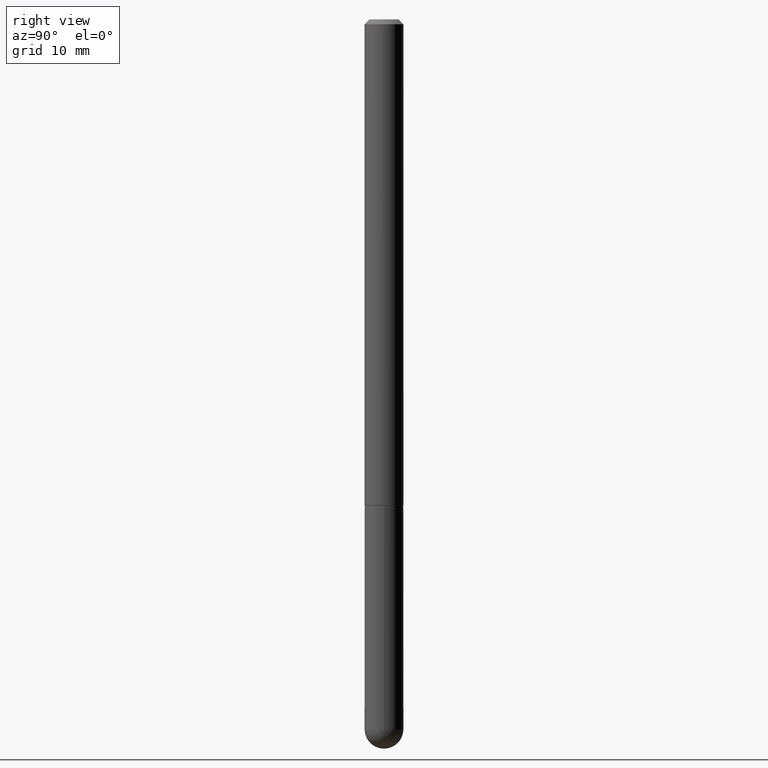
[diagram: clean part render]
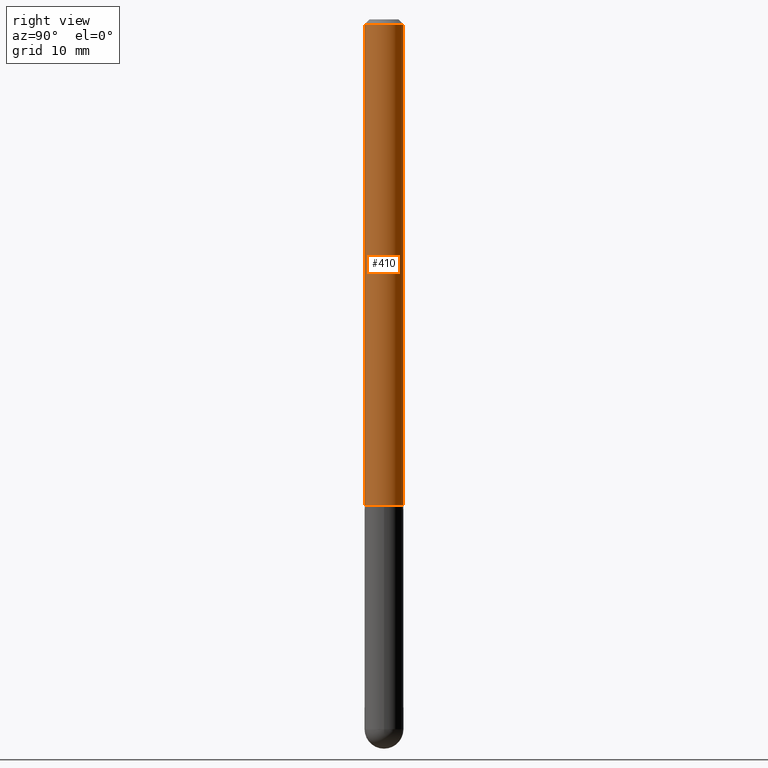
[diagram: same view with one face highlighted and labeled with its STEP entity id]
A machine part, right view. The second image highlights one B-rep face of the part: STEP entity #410.
In plain terms, the highlighted cylindrical surface (edge-blend (fillet) strip) has radius 2.0003 mm, axis along (-0, 0, 1).
Its self-contained STEP definition (entity closure, byte-faithful):
#7 = DIRECTION ( 'NONE',  ( -2.452606242276134078E-29, 3.481260124123204048E-15, 1.000000000000000000 ) ) ;
#37 = CIRCLE ( 'NONE', #340, 0.07875000000000019484 ) ;
#44 = CARTESIAN_POINT ( 'NONE',  ( -5.499083108677465071E-16, -0.07875000000000705047, -1.967499999999999361 ) ) ;
#50 = DIRECTION ( 'NONE',  ( -2.452606242276133797E-29, 3.481260124123203654E-15, 1.000000000000000000 ) ) ;
#58 = DIRECTION ( 'NONE',  ( -2.452606242276133797E-29, 3.481260124123203654E-15, 1.000000000000000000 ) ) ;
#60 = CARTESIAN_POINT ( 'NONE',  ( 4.905212484552271764E-31, -6.962520248246412533E-17, -0.02000000000000001776 ) ) ;
#65 = CARTESIAN_POINT ( 'NONE',  ( 5.499083108677938387E-16, 0.07874999999999993117, -0.02000000000000029185 ) ) ;
#91 = CYLINDRICAL_SURFACE ( 'NONE', #332, 0.07875000000000009770 ) ;
#93 = VECTOR ( 'NONE', #288, 39.37007874015748143 ) ;
#101 = VERTEX_POINT ( 'NONE', #44 ) ;
#117 = LINE ( 'NONE', #373, #93 ) ;
#126 = CARTESIAN_POINT ( 'NONE',  ( -5.402642173245075938E-16, -0.07875000000000006994, -0.01999999999999974368 ) ) ;
#127 = VERTEX_POINT ( 'NONE', #321 ) ;
#135 = FACE_OUTER_BOUND ( 'NONE', #230, .T. ) ;
#138 = ORIENTED_EDGE ( 'NONE', *, *, #282, .F. ) ;
#139 = VECTOR ( 'NONE', #7, 39.37007874015748143 ) ;
#146 = ORIENTED_EDGE ( 'NONE', *, *, #189, .T. ) ;
#166 = VERTEX_POINT ( 'NONE', #126 ) ;
#189 = EDGE_CURVE ( 'NONE', #101, #127, #37, .T. ) ;
#217 = EDGE_CURVE ( 'NONE', #166, #362, #354, .T. ) ;
#218 = DIRECTION ( 'NONE',  ( -2.452606242276133797E-29, 3.481260124123203654E-15, 1.000000000000000000 ) ) ;
#230 = EDGE_LOOP ( 'NONE', ( #146, #266, #358, #138 ) ) ;
#233 = LINE ( 'NONE', #286, #139 ) ;
#253 = DIRECTION ( 'NONE',  ( -6.982962677686265922E-15, -1.000000000000000000, 3.481260124123203654E-15 ) ) ;
#266 = ORIENTED_EDGE ( 'NONE', *, *, #326, .T. ) ;
#276 = CARTESIAN_POINT ( 'NONE',  ( 4.825502781678292621E-29, -6.849379294212400691E-15, -1.967499999999999805 ) ) ;
#282 = EDGE_CURVE ( 'NONE', #101, #166, #233, .T. ) ;
#286 = CARTESIAN_POINT ( 'NONE',  ( -5.499083108677941345E-16, -0.07875000000000009770, 2.741492347747026245E-16 ) ) ;
#288 = DIRECTION ( 'NONE',  ( -2.452606242276134078E-29, 3.481260124123204048E-15, 1.000000000000000000 ) ) ;
#311 = DIRECTION ( 'NONE',  ( -6.982962677686265922E-15, -1.000000000000000000, 3.469013325287944616E-15 ) ) ;
#321 = CARTESIAN_POINT ( 'NONE',  ( 5.595524044111042425E-16, 0.07874999999999335309, -1.967500000000000027 ) ) ;
#326 = EDGE_CURVE ( 'NONE', #127, #362, #117, .T. ) ;
#332 = AXIS2_PLACEMENT_3D ( 'NONE', #344, #218, #253 ) ;
#340 = AXIS2_PLACEMENT_3D ( 'NONE', #276, #58, #311 ) ;
#344 = CARTESIAN_POINT ( 'NONE',  ( 0.000000000000000000, 0.000000000000000000, 0.000000000000000000 ) ) ;
#354 = CIRCLE ( 'NONE', #402, 0.07875000000000000056 ) ;
#358 = ORIENTED_EDGE ( 'NONE', *, *, #217, .F. ) ;
#362 = VERTEX_POINT ( 'NONE', #65 ) ;
#373 = CARTESIAN_POINT ( 'NONE',  ( 5.595524044110794920E-16, 0.07875000000000009770, -2.741492347747026245E-16 ) ) ;
#401 = DIRECTION ( 'NONE',  ( -6.982962677686264344E-15, -1.000000000000000000, 3.469013325287953293E-15 ) ) ;
#402 = AXIS2_PLACEMENT_3D ( 'NONE', #60, #50, #401 ) ;
#410 = ADVANCED_FACE ( 'NONE', ( #135 ), #91, .T. ) ;